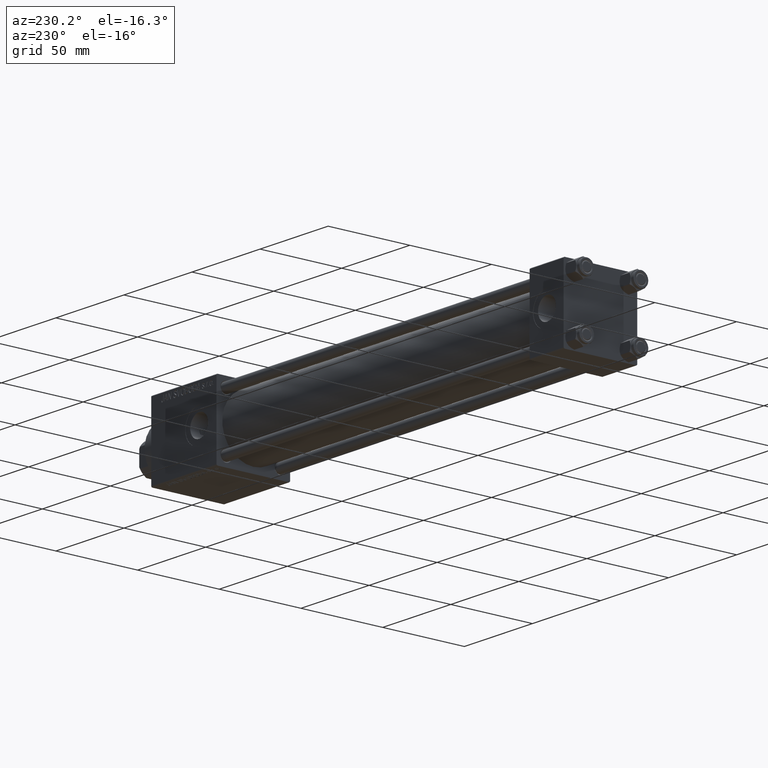
[diagram: clean part render]
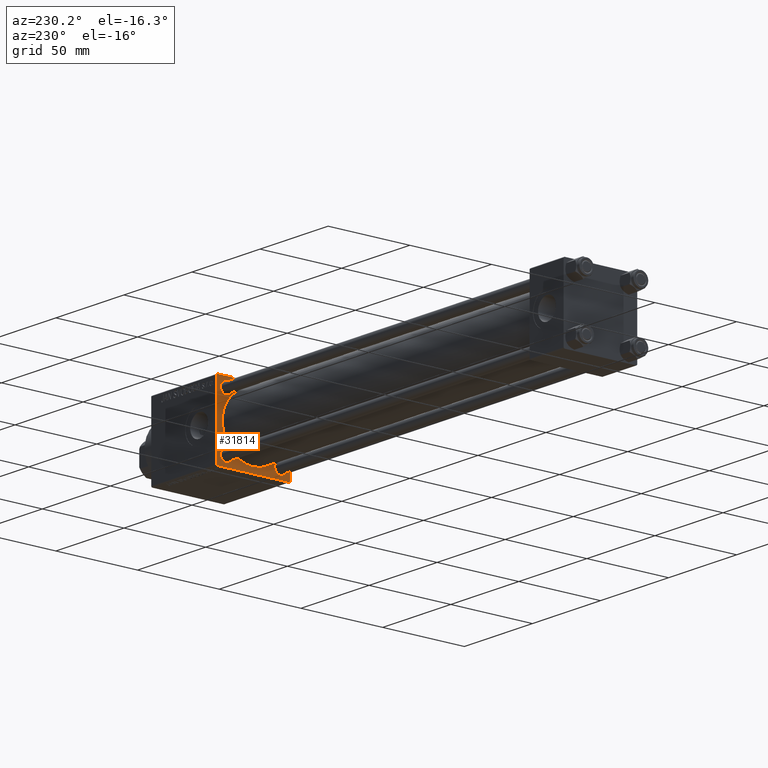
[diagram: same view with one face highlighted and labeled with its STEP entity id]
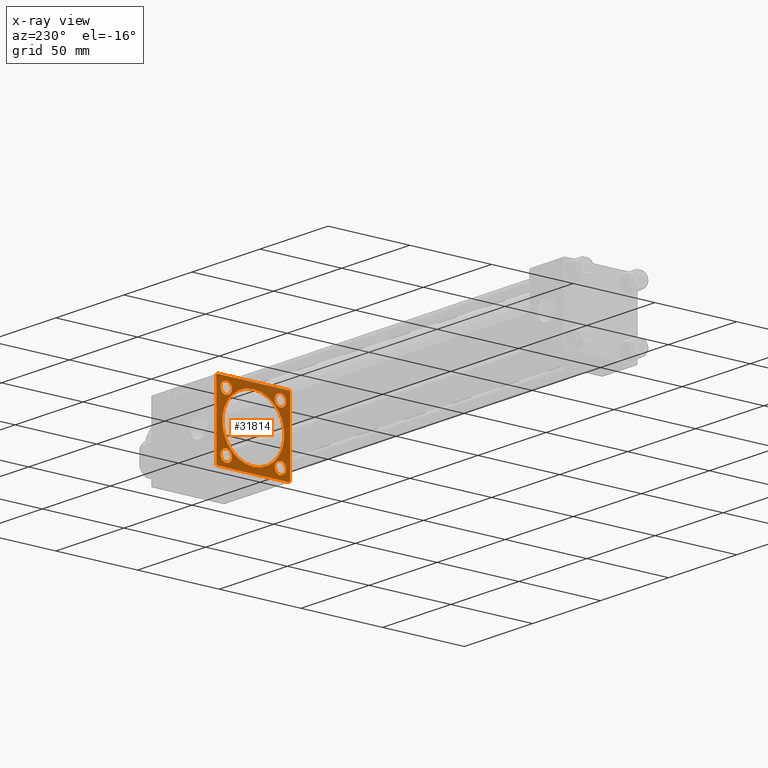
[diagram: x-ray of the same camera — body ghosted, the highlighted face saturated]
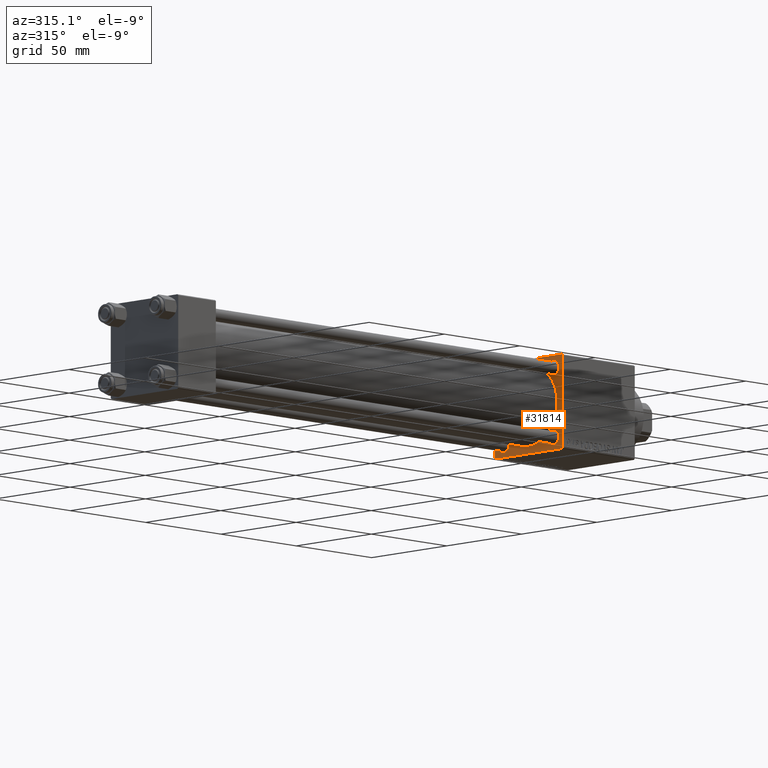
[diagram: same view with one face highlighted and labeled with its STEP entity id]
A machine part, auxiliary view. The second image highlights one B-rep face of the part: STEP entity #31814.
The next image is the same camera in x-ray: the body ghosted, the highlighted face saturated — about 27% of this face is hidden behind the body in this view.
A second angle (auxiliary view) of the same face is appended — the face is thin or edge-on in the first view.
In plain terms, the highlighted planar face has unit normal (-1, 0, 0).
Its self-contained STEP definition (entity closure, byte-faithful):
#603 = ORIENTED_EDGE ( 'NONE', *, *, #36269, .T. ) ;
#665 = CARTESIAN_POINT ( 'NONE',  ( 255.0000000000000000, -2.752562955852396712E-16, -19.00000000000000000 ) ) ;
#1284 = CARTESIAN_POINT ( 'NONE',  ( 255.0000000000000000, -21.99999999999998224, 22.49999999999999289 ) ) ;
#1818 = VERTEX_POINT ( 'NONE', #38699 ) ;
#1847 = AXIS2_PLACEMENT_3D ( 'NONE', #44488, #36353, #32537 ) ;
#2437 = PLANE ( 'NONE',  #3442 ) ;
#2525 = CARTESIAN_POINT ( 'NONE',  ( 255.0000000000000000, 22.50000000000000355, 22.50000000000000355 ) ) ;
#2702 = LINE ( 'NONE', #15166, #28968 ) ;
#2919 = DIRECTION ( 'NONE',  ( -0.000000000000000000, 0.7071067811865279218, 0.7071067811865672237 ) ) ;
#3048 = VERTEX_POINT ( 'NONE', #31448 ) ;
#3170 = DIRECTION ( 'NONE',  ( 0.000000000000000000, 0.000000000000000000, 1.000000000000000000 ) ) ;
#3442 = AXIS2_PLACEMENT_3D ( 'NONE', #14157, #23061, #26886 ) ;
#3483 = CIRCLE ( 'NONE', #21374, 3.500000000000010214 ) ;
#3752 = DIRECTION ( 'NONE',  ( 0.000000000000000000, 0.000000000000000000, 1.000000000000000000 ) ) ;
#3910 = CARTESIAN_POINT ( 'NONE',  ( 255.0000000000000000, -22.25000000000060751, 22.24999999999936762 ) ) ;
#4422 = EDGE_CURVE ( 'NONE', #32980, #28528, #17669, .T. ) ;
#4657 = CARTESIAN_POINT ( 'NONE',  ( 255.0000000000000000, -21.99999999999998224, -22.50000000000000000 ) ) ;
#4808 = CARTESIAN_POINT ( 'NONE',  ( 255.0000000000000000, -16.59999999999999076, -20.10000000000001563 ) ) ;
#4993 = CIRCLE ( 'NONE', #31885, 3.500000000000010214 ) ;
#5413 = CARTESIAN_POINT ( 'NONE',  ( 255.0000000000000000, 16.59999999999999787, 20.10000000000001208 ) ) ;
#6028 = DIRECTION ( 'NONE',  ( 1.000000000000000000, -0.000000000000000000, 0.000000000000000000 ) ) ;
#6254 = FACE_OUTER_BOUND ( 'NONE', #42663, .T. ) ;
#6302 = VERTEX_POINT ( 'NONE', #4808 ) ;
#6636 = CIRCLE ( 'NONE', #34286, 3.500000000000010214 ) ;
#6669 = AXIS2_PLACEMENT_3D ( 'NONE', #14744, #21643, #41995 ) ;
#7507 = CIRCLE ( 'NONE', #44082, 3.500000000000010214 ) ;
#7943 = DIRECTION ( 'NONE',  ( 0.000000000000000000, 0.000000000000000000, -1.000000000000000000 ) ) ;
#8526 = EDGE_LOOP ( 'NONE', ( #603, #23272 ) ) ;
#8544 = DIRECTION ( 'NONE',  ( 1.000000000000000000, -0.000000000000000000, 0.000000000000000000 ) ) ;
#9704 = ORIENTED_EDGE ( 'NONE', *, *, #18338, .F. ) ;
#10020 = DIRECTION ( 'NONE',  ( 1.000000000000000000, -0.000000000000000000, 0.000000000000000000 ) ) ;
#10541 = ORIENTED_EDGE ( 'NONE', *, *, #24068, .T. ) ;
#11804 = DIRECTION ( 'NONE',  ( 0.000000000000000000, 0.7071067811865279218, -0.7071067811865672237 ) ) ;
#11868 = LINE ( 'NONE', #27928, #20462 ) ;
#12304 = CIRCLE ( 'NONE', #1847, 19.00000000000000000 ) ;
#13146 = CIRCLE ( 'NONE', #16409, 3.500000000000013323 ) ;
#13182 = CIRCLE ( 'NONE', #6669, 3.500000000000010214 ) ;
#13551 = DIRECTION ( 'NONE',  ( 0.000000000000000000, -1.000000000000000000, -7.709882115452476934E-17 ) ) ;
#13588 = CARTESIAN_POINT ( 'NONE',  ( 255.0000000000000000, 22.50000000000000355, 21.99999999999997513 ) ) ;
#13652 = FACE_BOUND ( 'NONE', #30666, .T. ) ;
#13738 = LINE ( 'NONE', #2525, #17586 ) ;
#13862 = EDGE_LOOP ( 'NONE', ( #50218, #37431 ) ) ;
#14157 = CARTESIAN_POINT ( 'NONE',  ( 255.0000000000000000, 0.000000000000000000, 0.000000000000000000 ) ) ;
#14466 = CARTESIAN_POINT ( 'NONE',  ( 255.0000000000000000, 16.59999999999999787, 16.60000000000000497 ) ) ;
#14744 = CARTESIAN_POINT ( 'NONE',  ( 255.0000000000000000, 16.59999999999999787, -16.60000000000000497 ) ) ;
#14791 = VECTOR ( 'NONE', #11804, 1000.000000000000000 ) ;
#14814 = LINE ( 'NONE', #23211, #17960 ) ;
#15166 = CARTESIAN_POINT ( 'NONE',  ( 255.0000000000000000, 22.24999999999996803, -22.24999999999996803 ) ) ;
#16024 = ORIENTED_EDGE ( 'NONE', *, *, #30450, .T. ) ;
#16068 = CARTESIAN_POINT ( 'NONE',  ( 255.0000000000000000, -22.49999999999999645, 21.99999999999996447 ) ) ;
#16409 = AXIS2_PLACEMENT_3D ( 'NONE', #22542, #26626, #3170 ) ;
#16612 = LINE ( 'NONE', #20693, #28383 ) ;
#16682 = EDGE_CURVE ( 'NONE', #25739, #21601, #14814, .T. ) ;
#17586 = VECTOR ( 'NONE', #45058, 1000.000000000000000 ) ;
#17669 = CIRCLE ( 'NONE', #28249, 3.500000000000010214 ) ;
#17960 = VECTOR ( 'NONE', #50178, 1000.000000000000000 ) ;
#18338 = EDGE_CURVE ( 'NONE', #22379, #33438, #11868, .T. ) ;
#18341 = EDGE_CURVE ( 'NONE', #28336, #35759, #6636, .T. ) ;
#19002 = DIRECTION ( 'NONE',  ( -0.000000000000000000, -0.7071067811865474617, -0.7071067811865474617 ) ) ;
#20462 = VECTOR ( 'NONE', #43447, 1000.000000000000000 ) ;
#20602 = CIRCLE ( 'NONE', #49046, 3.500000000000013323 ) ;
#20655 = ORIENTED_EDGE ( 'NONE', *, *, #35203, .T. ) ;
#20679 = LINE ( 'NONE', #39524, #31125 ) ;
#20693 = CARTESIAN_POINT ( 'NONE',  ( 255.0000000000000000, 22.50000000000000355, -22.49999999999999645 ) ) ;
#21149 = VERTEX_POINT ( 'NONE', #4657 ) ;
#21374 = AXIS2_PLACEMENT_3D ( 'NONE', #33725, #33975, #29896 ) ;
#21601 = VERTEX_POINT ( 'NONE', #1284 ) ;
#21643 = DIRECTION ( 'NONE',  ( 1.000000000000000000, -0.000000000000000000, 0.000000000000000000 ) ) ;
#21665 = ORIENTED_EDGE ( 'NONE', *, *, #45030, .T. ) ;
#22379 = VERTEX_POINT ( 'NONE', #16068 ) ;
#22542 = CARTESIAN_POINT ( 'NONE',  ( 255.0000000000000000, -16.59999999999999076, 16.60000000000000853 ) ) ;
#23061 = DIRECTION ( 'NONE',  ( -1.000000000000000000, 0.000000000000000000, -0.000000000000000000 ) ) ;
#23211 = CARTESIAN_POINT ( 'NONE',  ( 255.0000000000000000, 22.50000000000000355, 22.50000000000000355 ) ) ;
#23272 = ORIENTED_EDGE ( 'NONE', *, *, #34451, .T. ) ;
#23821 = EDGE_LOOP ( 'NONE', ( #20655, #49636 ) ) ;
#24068 = EDGE_CURVE ( 'NONE', #34555, #21149, #16612, .T. ) ;
#24092 = DIRECTION ( 'NONE',  ( 0.000000000000000000, 0.000000000000000000, 1.000000000000000000 ) ) ;
#24644 = CARTESIAN_POINT ( 'NONE',  ( 255.0000000000000000, -16.59999999999999076, -13.09999999999999787 ) ) ;
#24972 = CARTESIAN_POINT ( 'NONE',  ( 255.0000000000000000, 16.59999999999999787, -13.09999999999999432 ) ) ;
#25105 = ORIENTED_EDGE ( 'NONE', *, *, #45468, .T. ) ;
#25383 = FACE_BOUND ( 'NONE', #33778, .T. ) ;
#25683 = ORIENTED_EDGE ( 'NONE', *, *, #30556, .T. ) ;
#25739 = VERTEX_POINT ( 'NONE', #46751 ) ;
#26013 = EDGE_CURVE ( 'NONE', #22379, #21601, #37816, .T. ) ;
#26377 = CARTESIAN_POINT ( 'NONE',  ( 255.0000000000000000, 22.25000000000061462, 22.24999999999937828 ) ) ;
#26626 = DIRECTION ( 'NONE',  ( 1.000000000000000000, -0.000000000000000000, 0.000000000000000000 ) ) ;
#26886 = DIRECTION ( 'NONE',  ( -0.000000000000000000, 0.000000000000000000, 1.000000000000000000 ) ) ;
#27084 = VERTEX_POINT ( 'NONE', #24644 ) ;
#27928 = CARTESIAN_POINT ( 'NONE',  ( 255.0000000000000000, -22.49999999999999645, 22.49999999999999289 ) ) ;
#28249 = AXIS2_PLACEMENT_3D ( 'NONE', #14466, #33844, #3752 ) ;
#28336 = VERTEX_POINT ( 'NONE', #48505 ) ;
#28383 = VECTOR ( 'NONE', #13551, 1000.000000000000000 ) ;
#28451 = DIRECTION ( 'NONE',  ( 0.000000000000000000, 0.000000000000000000, 1.000000000000000000 ) ) ;
#28460 = CARTESIAN_POINT ( 'NONE',  ( 255.0000000000000000, -22.49999999999999645, -21.99999999999995026 ) ) ;
#28528 = VERTEX_POINT ( 'NONE', #5413 ) ;
#28968 = VECTOR ( 'NONE', #19002, 1000.000000000000114 ) ;
#29198 = ORIENTED_EDGE ( 'NONE', *, *, #38279, .T. ) ;
#29199 = FACE_BOUND ( 'NONE', #23821, .T. ) ;
#29450 = FACE_BOUND ( 'NONE', #13862, .T. ) ;
#29896 = DIRECTION ( 'NONE',  ( 0.000000000000000000, 0.000000000000000000, 1.000000000000000000 ) ) ;
#29903 = CARTESIAN_POINT ( 'NONE',  ( 255.0000000000000000, 21.99999999999994671, -22.49999999999999645 ) ) ;
#30450 = EDGE_CURVE ( 'NONE', #25739, #44364, #34755, .T. ) ;
#30556 = EDGE_CURVE ( 'NONE', #3048, #30645, #13146, .T. ) ;
#30645 = VERTEX_POINT ( 'NONE', #43881 ) ;
#30666 = EDGE_LOOP ( 'NONE', ( #25683, #29198 ) ) ;
#31125 = VECTOR ( 'NONE', #40036, 1000.000000000000000 ) ;
#31159 = VERTEX_POINT ( 'NONE', #43267 ) ;
#31448 = CARTESIAN_POINT ( 'NONE',  ( 255.0000000000000000, -16.59999999999999076, 20.10000000000001918 ) ) ;
#31650 = DIRECTION ( 'NONE',  ( 1.000000000000000000, 0.000000000000000000, 0.000000000000000000 ) ) ;
#31814 = ADVANCED_FACE ( 'NONE', ( #13652, #29199, #25383, #40904, #29450, #6254 ), #2437, .T. ) ;
#31885 = AXIS2_PLACEMENT_3D ( 'NONE', #32282, #10020, #28451 ) ;
#32282 = CARTESIAN_POINT ( 'NONE',  ( 255.0000000000000000, -16.59999999999999076, -16.60000000000000853 ) ) ;
#32537 = DIRECTION ( 'NONE',  ( 0.000000000000000000, 0.000000000000000000, -1.000000000000000000 ) ) ;
#32798 = CARTESIAN_POINT ( 'NONE',  ( 255.0000000000000000, -16.59999999999999076, 16.60000000000000853 ) ) ;
#32980 = VERTEX_POINT ( 'NONE', #34230 ) ;
#33052 = DIRECTION ( 'NONE',  ( 0.000000000000000000, 0.000000000000000000, 1.000000000000000000 ) ) ;
#33438 = VERTEX_POINT ( 'NONE', #28460 ) ;
#33455 = EDGE_CURVE ( 'NONE', #39968, #1818, #12304, .T. ) ;
#33725 = CARTESIAN_POINT ( 'NONE',  ( 255.0000000000000000, -16.59999999999999076, -16.60000000000000853 ) ) ;
#33778 = EDGE_LOOP ( 'NONE', ( #34114, #43204 ) ) ;
#33844 = DIRECTION ( 'NONE',  ( 1.000000000000000000, -0.000000000000000000, 0.000000000000000000 ) ) ;
#33975 = DIRECTION ( 'NONE',  ( 1.000000000000000000, -0.000000000000000000, 0.000000000000000000 ) ) ;
#34114 = ORIENTED_EDGE ( 'NONE', *, *, #35079, .T. ) ;
#34230 = CARTESIAN_POINT ( 'NONE',  ( 255.0000000000000000, 16.59999999999999787, 13.09999999999999432 ) ) ;
#34286 = AXIS2_PLACEMENT_3D ( 'NONE', #38880, #8544, #24092 ) ;
#34451 = EDGE_CURVE ( 'NONE', #6302, #27084, #4993, .T. ) ;
#34555 = VERTEX_POINT ( 'NONE', #29903 ) ;
#34755 = LINE ( 'NONE', #26377, #14791 ) ;
#35079 = EDGE_CURVE ( 'NONE', #35759, #28336, #13182, .T. ) ;
#35203 = EDGE_CURVE ( 'NONE', #28528, #32980, #7507, .T. ) ;
#35759 = VERTEX_POINT ( 'NONE', #24972 ) ;
#36024 = CIRCLE ( 'NONE', #46587, 19.00000000000000000 ) ;
#36269 = EDGE_CURVE ( 'NONE', #27084, #6302, #3483, .T. ) ;
#36353 = DIRECTION ( 'NONE',  ( 1.000000000000000000, 0.000000000000000000, 0.000000000000000000 ) ) ;
#36781 = EDGE_CURVE ( 'NONE', #1818, #39968, #36024, .T. ) ;
#36900 = EDGE_CURVE ( 'NONE', #21149, #33438, #20679, .T. ) ;
#37431 = ORIENTED_EDGE ( 'NONE', *, *, #33455, .T. ) ;
#37491 = ORIENTED_EDGE ( 'NONE', *, *, #16682, .F. ) ;
#37816 = LINE ( 'NONE', #3910, #43103 ) ;
#38279 = EDGE_CURVE ( 'NONE', #30645, #3048, #20602, .T. ) ;
#38699 = CARTESIAN_POINT ( 'NONE',  ( 255.0000000000000000, -2.602085213965210642E-15, 19.00000000000000000 ) ) ;
#38880 = CARTESIAN_POINT ( 'NONE',  ( 255.0000000000000000, 16.59999999999999787, -16.60000000000000497 ) ) ;
#39524 = CARTESIAN_POINT ( 'NONE',  ( 255.0000000000000000, -22.25000000000076383, -22.24999999999921840 ) ) ;
#39968 = VERTEX_POINT ( 'NONE', #665 ) ;
#40036 = DIRECTION ( 'NONE',  ( 0.000000000000000000, -0.7071067811865230368, 0.7071067811865721087 ) ) ;
#40904 = FACE_BOUND ( 'NONE', #8526, .T. ) ;
#41406 = CARTESIAN_POINT ( 'NONE',  ( 255.0000000000000000, -2.602085213965210642E-15, 0.000000000000000000 ) ) ;
#41995 = DIRECTION ( 'NONE',  ( 0.000000000000000000, 0.000000000000000000, 1.000000000000000000 ) ) ;
#42663 = EDGE_LOOP ( 'NONE', ( #10541, #42831, #9704, #44354, #37491, #16024, #25105, #21665 ) ) ;
#42831 = ORIENTED_EDGE ( 'NONE', *, *, #36900, .T. ) ;
#43103 = VECTOR ( 'NONE', #2919, 1000.000000000000000 ) ;
#43204 = ORIENTED_EDGE ( 'NONE', *, *, #18341, .T. ) ;
#43267 = CARTESIAN_POINT ( 'NONE',  ( 255.0000000000000000, 22.50000000000000355, -21.99999999999992539 ) ) ;
#43447 = DIRECTION ( 'NONE',  ( 0.000000000000000000, 0.000000000000000000, -1.000000000000000000 ) ) ;
#43738 = DIRECTION ( 'NONE',  ( 1.000000000000000000, -0.000000000000000000, 0.000000000000000000 ) ) ;
#43881 = CARTESIAN_POINT ( 'NONE',  ( 255.0000000000000000, -16.59999999999999076, 13.09999999999999432 ) ) ;
#43988 = DIRECTION ( 'NONE',  ( 0.000000000000000000, 0.000000000000000000, 1.000000000000000000 ) ) ;
#44082 = AXIS2_PLACEMENT_3D ( 'NONE', #48052, #43738, #43988 ) ;
#44354 = ORIENTED_EDGE ( 'NONE', *, *, #26013, .T. ) ;
#44364 = VERTEX_POINT ( 'NONE', #13588 ) ;
#44488 = CARTESIAN_POINT ( 'NONE',  ( 255.0000000000000000, -2.602085213965210642E-15, 0.000000000000000000 ) ) ;
#45030 = EDGE_CURVE ( 'NONE', #31159, #34555, #2702, .T. ) ;
#45058 = DIRECTION ( 'NONE',  ( 0.000000000000000000, 0.000000000000000000, -1.000000000000000000 ) ) ;
#45468 = EDGE_CURVE ( 'NONE', #44364, #31159, #13738, .T. ) ;
#46587 = AXIS2_PLACEMENT_3D ( 'NONE', #41406, #31650, #7943 ) ;
#46751 = CARTESIAN_POINT ( 'NONE',  ( 255.0000000000000000, 22.00000000000000355, 22.50000000000000355 ) ) ;
#48052 = CARTESIAN_POINT ( 'NONE',  ( 255.0000000000000000, 16.59999999999999787, 16.60000000000000497 ) ) ;
#48505 = CARTESIAN_POINT ( 'NONE',  ( 255.0000000000000000, 16.59999999999999787, -20.10000000000001208 ) ) ;
#49046 = AXIS2_PLACEMENT_3D ( 'NONE', #32798, #6028, #33052 ) ;
#49636 = ORIENTED_EDGE ( 'NONE', *, *, #4422, .T. ) ;
#50178 = DIRECTION ( 'NONE',  ( 0.000000000000000000, -1.000000000000000000, -2.312964634635742957E-16 ) ) ;
#50218 = ORIENTED_EDGE ( 'NONE', *, *, #36781, .T. ) ;